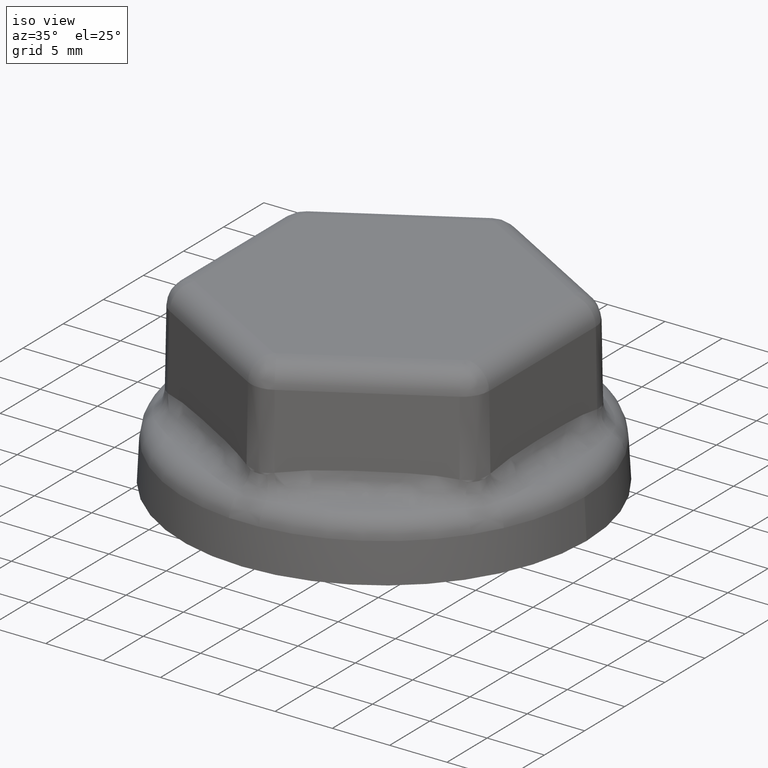
[diagram: clean part render]
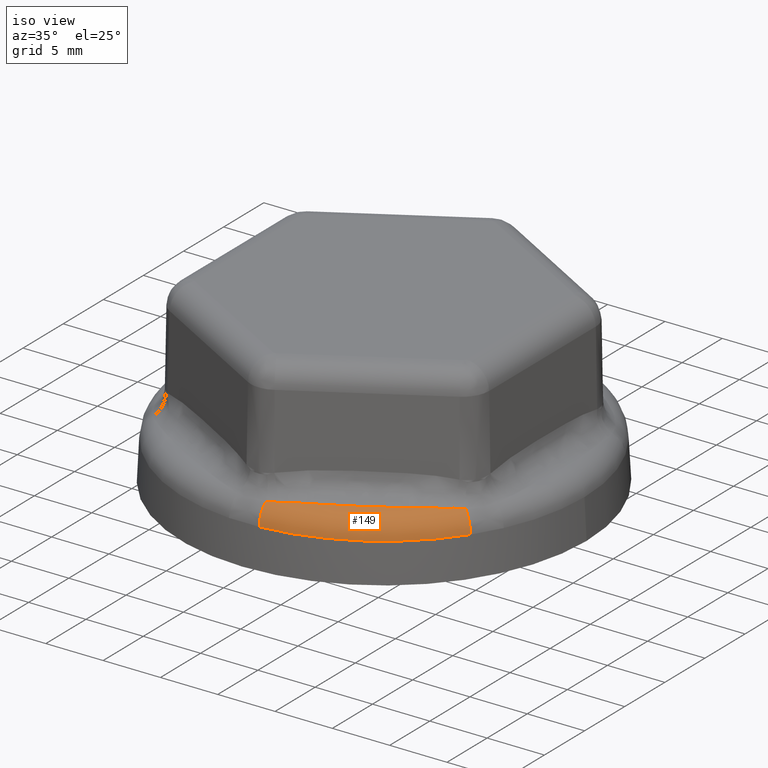
[diagram: same view with one face highlighted and labeled with its STEP entity id]
A machine part, iso view. The second image highlights one B-rep face of the part: STEP entity #149.
In plain terms, the highlighted toroidal blend (fillet) surface has major radius 15.4973 mm and minor (blend) radius 2 mm.
Its self-contained STEP definition (entity closure, byte-faithful):
#149 = ADVANCED_FACE( '', ( #334 ), #335, .T. );
#334 = FACE_OUTER_BOUND( '', #3233, .T. );
#335 = TOROIDAL_SURFACE( '', #3234, 15.4972553080042, 2.00000000000000 );
#3233 = EDGE_LOOP( '', ( #5062, #5063, #5064, #5065, #5066, #5067 ) );
#3234 = AXIS2_PLACEMENT_3D( '', #5068, #5069, #5070 );
#5062 = ORIENTED_EDGE( '', *, *, #5473, .T. );
#5063 = ORIENTED_EDGE( '', *, *, #5469, .T. );
#5064 = ORIENTED_EDGE( '', *, *, #5443, .T. );
#5065 = ORIENTED_EDGE( '', *, *, #5417, .F. );
#5066 = ORIENTED_EDGE( '', *, *, #5439, .F. );
#5067 = ORIENTED_EDGE( '', *, *, #5476, .T. );
#5068 = CARTESIAN_POINT( '', ( 0.000000000000000, 0.000000000000000, 3.30000000000000 ) );
#5069 = DIRECTION( '', ( 0.000000000000000, 0.000000000000000, 1.00000000000000 ) );
#5070 = DIRECTION( '', ( 1.00000000000000, 0.000000000000000, 0.000000000000000 ) );
#5417 = EDGE_CURVE( '', #5766, #5768, #5769, .T. );
#5439 = EDGE_CURVE( '', #5807, #5766, #5809, .T. );
#5443 = EDGE_CURVE( '', #5815, #5768, #5816, .T. );
#5469 = EDGE_CURVE( '', #5855, #5815, #5857, .T. );
#5473 = EDGE_CURVE( '', #5861, #5855, #5863, .T. );
#5476 = EDGE_CURVE( '', #5807, #5861, #5866, .T. );
#5766 = VERTEX_POINT( '', #6964 );
#5768 = VERTEX_POINT( '', #6982 );
#5769 = CIRCLE( '', #6983, 17.4945143775133 );
#5807 = VERTEX_POINT( '', #7209 );
#5809 = CIRCLE( '', #7232, 2.00000000000000 );
#5815 = VERTEX_POINT( '', #7259 );
#5816 = CIRCLE( '', #7260, 2.00000000000000 );
#5855 = VERTEX_POINT( '', #7568 );
#5857 = B_SPLINE_CURVE_WITH_KNOTS( '', 3, ( #7570, #7571, #7572, #7573, #7574, #7575 ), .UNSPECIFIED., .F., .F., ( 4, 2, 4 ), ( 0.000000000000000, 0.000451769094638916, 0.000903538189277831 ), .UNSPECIFIED. );
#5861 = VERTEX_POINT( '', #7614 );
#5863 = B_SPLINE_CURVE_WITH_KNOTS( '', 3, ( #7616, #7617, #7618, #7619, #7620, #7621, #7622, #7623, #7624, #7625, #7626, #7627, #7628, #7629, #7630, #7631, #7632, #7633, #7634, #7635, #7636, #7637, #7638, #7639, #7640, #7641, #7642, #7643, #7644, #7645, #7646, #7647, #7648, #7649, #7650, #7651 ), .UNSPECIFIED., .F., .F., ( 4, 1, 1, 1, 2, 2, 2, 2, 2, 2, 1, 2, 1, 1, 1, 2, 2, 2, 2, 1, 1, 1, 4 ), ( 0.000000000000000, 0.000396585950711471, 0.000793171901422943, 0.00118975785213441, 0.00158634380284589, 0.00237951570426883, 0.00317268760569178, 0.00396585950711472, 0.00475903140853767, 0.00495732438389340, 0.00515561735924914, 0.00555220330996060, 0.00634537521138352, 0.00713854711280644, 0.00793171901422936, 0.00872489091565228, 0.00951806281707520, 0.0103112347184981, 0.0111044066199210, 0.0115009925706325, 0.0118975785213440, 0.0122941644720554, 0.0126907504227669 ), .UNSPECIFIED. );
#5866 = B_SPLINE_CURVE_WITH_KNOTS( '', 3, ( #7662, #7663, #7664, #7665, #7666, #7667, #7668, #7669, #7670 ), .UNSPECIFIED., .F., .F., ( 4, 1, 2, 2, 4 ), ( 9.85133562538035E-018, 0.000226074887599795, 0.000339112331399685, 0.000452149775199576, 0.000904299550399138 ), .UNSPECIFIED. );
#6964 = CARTESIAN_POINT( '', ( 14.4529748122616, -9.85746176158705, 3.40467191248589 ) );
#6982 = CARTESIAN_POINT( '', ( 1.31032489623626, -17.4453742284688, 3.40467191248589 ) );
#6983 = AXIS2_PLACEMENT_3D( '', #8160, #8161, #8162 );
#7209 = CARTESIAN_POINT( '', ( 13.6584090820080, -9.31553863470260, 5.01107489317820 ) );
#7232 = AXIS2_PLACEMENT_3D( '', #8184, #8185, #8186 );
#7259 = CARTESIAN_POINT( '', ( 1.23828856658287, -16.4862985576498, 5.01107489317853 ) );
#7260 = AXIS2_PLACEMENT_3D( '', #8193, #8194, #8195 );
#7568 = CARTESIAN_POINT( '', ( 2.10518756709903, -16.2454853265960, 5.09399877476274 ) );
#7570 = CARTESIAN_POINT( '', ( 2.10518756709903, -16.2454853265960, 5.09399877476274 ) );
#7571 = CARTESIAN_POINT( '', ( 1.96395080970663, -16.2965528084092, 5.07798632931213 ) );
#7572 = CARTESIAN_POINT( '', ( 1.82107519270679, -16.3419958720433, 5.06277330906827 ) );
#7573 = CARTESIAN_POINT( '', ( 1.53210317673754, -16.4221504037145, 5.03485296966725 ) );
#7574 = CARTESIAN_POINT( '', ( 1.38600634414360, -16.4568599346298, 5.02214455823319 ) );
#7575 = CARTESIAN_POINT( '', ( 1.23828856658287, -16.4862985576498, 5.01107489317853 ) );
#7614 = CARTESIAN_POINT( '', ( 13.0164092057850, -9.94588857639398, 5.09399877480527 ) );
#7616 = CARTESIAN_POINT( '', ( 13.0164092057850, -9.94588857639398, 5.09399877480527 ) );
#7617 = CARTESIAN_POINT( '', ( 12.9154666655660, -10.0309543863149, 5.10807295649784 ) );
#7618 = CARTESIAN_POINT( '', ( 12.7128482690152, -10.2002692579226, 5.13356695409562 ) );
#7619 = CARTESIAN_POINT( '', ( 12.4066394113839, -10.4515970510810, 5.16514658996352 ) );
#7620 = CARTESIAN_POINT( '', ( 12.0980700985441, -10.7001041379157, 5.19113243454362 ) );
#7621 = CARTESIAN_POINT( '', ( 11.8907328469884, -10.8637881114435, 5.20531969653194 ) );
#7622 = CARTESIAN_POINT( '', ( 11.5784725128507, -11.1077503297619, 5.22462334866389 ) );
#7623 = CARTESIAN_POINT( '', ( 11.3686255942102, -11.2683048448491, 5.23487087451573 ) );
#7624 = CARTESIAN_POINT( '', ( 10.9454091162958, -11.5849003394105, 5.25169731807562 ) );
#7625 = CARTESIAN_POINT( '', ( 10.7320395063350, -11.7409415399344, 5.25827178134730 ) );
#7626 = CARTESIAN_POINT( '', ( 10.3016262063374, -12.0482320409734, 5.26889222000291 ) );
#7627 = CARTESIAN_POINT( '', ( 10.0845825014300, -12.1994814833202, 5.27293570377006 ) );
#7628 = CARTESIAN_POINT( '', ( 9.64669514929818, -12.4969653796406, 5.27931458690585 ) );
#7629 = CARTESIAN_POINT( '', ( 9.42585150073874, -12.6431999216572, 5.28164860351850 ) );
#7630 = CARTESIAN_POINT( '', ( 9.14735940161206, -12.8227517426913, 5.28384606653874 ) );
#7631 = CARTESIAN_POINT( '', ( 9.09153085748689, -12.8585054413078, 5.28424901013683 ) );
#7632 = CARTESIAN_POINT( '', ( 8.97966736739020, -12.9296622796259, 5.28498782309784 ) );
#7633 = CARTESIAN_POINT( '', ( 8.81160681014919, -13.0358438336595, 5.28599495269769 ) );
#7634 = CARTESIAN_POINT( '', ( 8.64274788012946, -13.1403608461004, 5.28672603640205 ) );
#7635 = CARTESIAN_POINT( '', ( 8.30396174727319, -13.3471706324454, 5.28787230040049 ) );
#7636 = CARTESIAN_POINT( '', ( 7.84939635820341, -13.6169827310654, 5.28857193299424 ) );
#7637 = CARTESIAN_POINT( '', ( 7.15900270250673, -14.0039291155702, 5.28746356850521 ) );
#7638 = CARTESIAN_POINT( '', ( 6.46015548913319, -14.3732758124843, 5.28387955757818 ) );
#7639 = CARTESIAN_POINT( '', ( 5.98874009851532, -14.6079819916907, 5.27919442624313 ) );
#7640 = CARTESIAN_POINT( '', ( 5.51465473723394, -14.8370773122342, 5.27280446778558 ) );
#7641 = CARTESIAN_POINT( '', ( 5.27627700155020, -14.9488194813931, 5.26875852898463 ) );
#7642 = CARTESIAN_POINT( '', ( 4.79697109511433, -15.1668934615150, 5.25814133246282 ) );
#7643 = CARTESIAN_POINT( '', ( 4.55604281455347, -15.2732251911732, 5.25157264829883 ) );
#7644 = CARTESIAN_POINT( '', ( 4.07178893570831, -15.4807298911657, 5.23476646570103 ) );
#7645 = CARTESIAN_POINT( '', ( 3.82846316493070, -15.5819027635741, 5.22453353692831 ) );
#7646 = CARTESIAN_POINT( '', ( 3.46181963804890, -15.7300220466108, 5.20525539849432 ) );
#7647 = CARTESIAN_POINT( '', ( 3.21683961659405, -15.8275557522073, 5.19108626253046 ) );
#7648 = CARTESIAN_POINT( '', ( 2.84780039641163, -15.9703493445417, 5.16512715079057 ) );
#7649 = CARTESIAN_POINT( '', ( 2.47728500390129, -16.1097774897337, 5.13356770379053 ) );
#7650 = CARTESIAN_POINT( '', ( 2.22935967315327, -16.2005879714668, 5.10807654852067 ) );
#7651 = CARTESIAN_POINT( '', ( 2.10518756709903, -16.2454853265960, 5.09399877476279 ) );
#7662 = CARTESIAN_POINT( '', ( 13.6584090820080, -9.31553863470259, 5.01107489317820 ) );
#7663 = CARTESIAN_POINT( '', ( 13.6088039267650, -9.37206108351035, 5.01660174971598 ) );
#7664 = CARTESIAN_POINT( '', ( 13.5329320101743, -9.45539782018381, 5.02550989461894 ) );
#7665 = CARTESIAN_POINT( '', ( 13.4548364536943, -9.53654988663985, 5.03524438118091 ) );
#7666 = CARTESIAN_POINT( '', ( 13.4022738778136, -9.59016271862582, 5.04190555086977 ) );
#7667 = CARTESIAN_POINT( '', ( 13.3757368757490, -9.61673111519457, 5.04532276873470 ) );
#7668 = CARTESIAN_POINT( '', ( 13.2418772697925, -9.74825951647209, 5.06279547863351 ) );
#7669 = CARTESIAN_POINT( '', ( 13.1310834905088, -9.84925081621791, 5.07801000842984 ) );
#7670 = CARTESIAN_POINT( '', ( 13.0164092057850, -9.94588857639398, 5.09399877480527 ) );
#8160 = CARTESIAN_POINT( '', ( 0.000000000000000, 0.000000000000000, 3.40467191248589 ) );
#8161 = DIRECTION( '', ( 0.000000000000000, 0.000000000000000, -1.00000000000000 ) );
#8162 = DIRECTION( '', ( -1.00000000000000, 0.000000000000000, 0.000000000000000 ) );
#8184 = CARTESIAN_POINT( '', ( 12.8029527309239, -8.73208585912843, 3.30000000000000 ) );
#8185 = DIRECTION( '', ( 0.563460153787259, 0.826143241268752, 0.000000000000000 ) );
#8186 = DIRECTION( '', ( -0.826143241268752, 0.563460153787259, 0.000000000000000 ) );
#8193 = CARTESIAN_POINT( '', ( 1.16073181656922, -15.4537252379958, 3.30000000000000 ) );
#8194 = DIRECTION( '', ( 0.997191110997189, 0.0748991865656180, 0.000000000000000 ) );
#8195 = DIRECTION( '', ( -0.0748991865656180, 0.997191110997189, 0.000000000000000 ) );